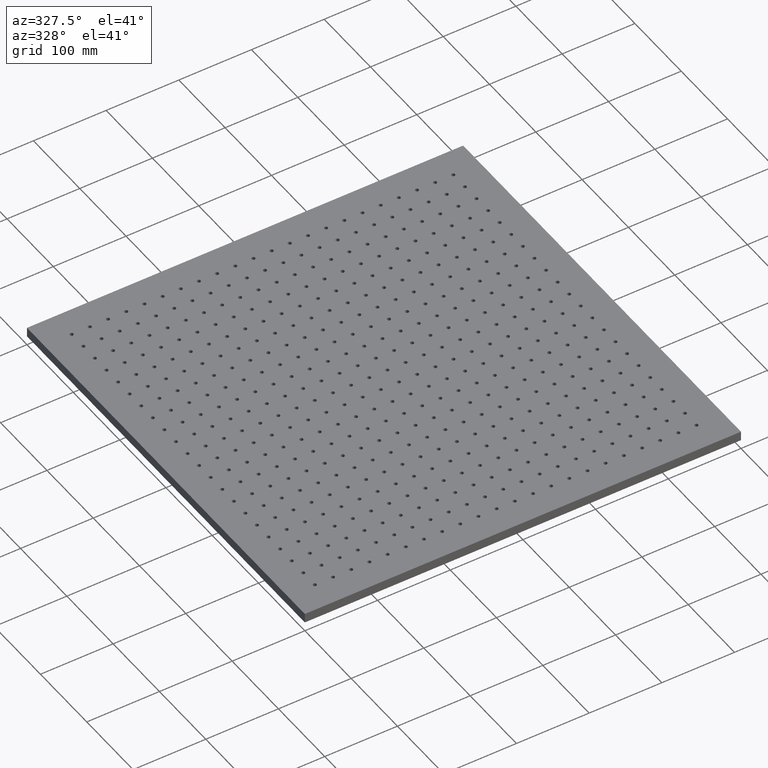
[diagram: clean part render]
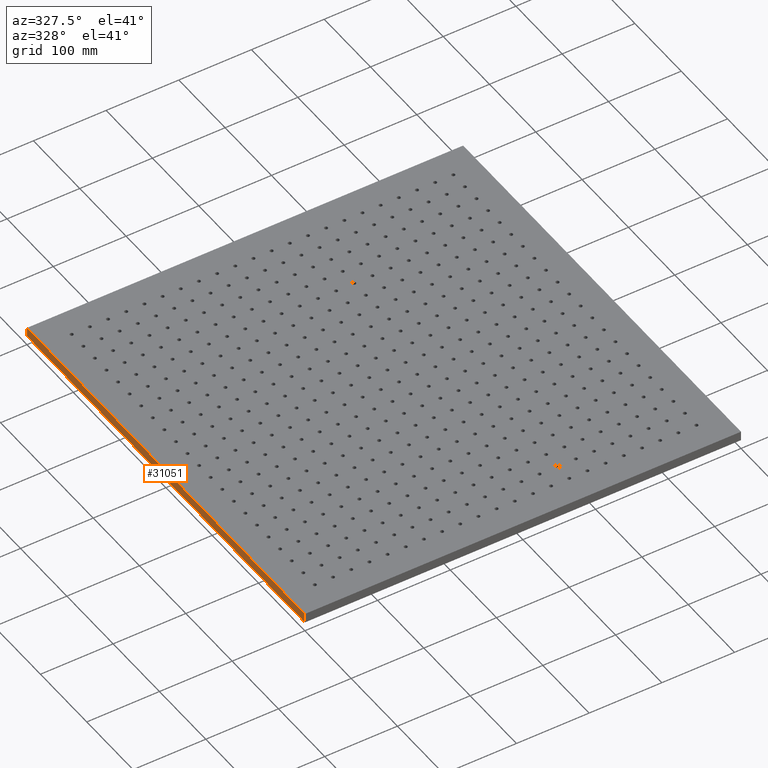
[diagram: same view with one face highlighted and labeled with its STEP entity id]
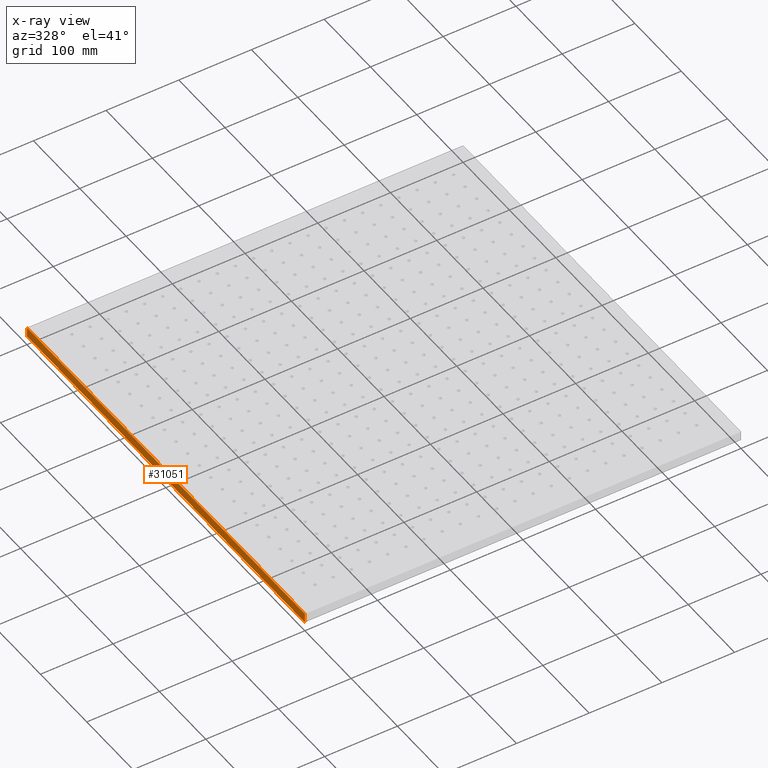
[diagram: x-ray of the same camera — body ghosted, the highlighted face saturated]
A machine part, auxiliary view. The second image highlights one B-rep face of the part: STEP entity #31051.
The next image is the same camera in x-ray: the body ghosted, the highlighted face saturated — about 0% of this face is hidden behind the body in this view.
In plain terms, the highlighted planar face has unit normal (1, 0, -0).
Its self-contained STEP definition (entity closure, byte-faithful):
#47 = CARTESIAN_POINT ( 'NONE',  ( -300.0000000000000600, -299.9999999999999400, 0.0000000000000000000 ) ) ;
#203 = VERTEX_POINT ( 'NONE', #47 ) ;
#243 = EDGE_CURVE ( 'NONE', #24601, #203, #950, .T. ) ;
#950 = LINE ( 'NONE', #16553, #22198 ) ;
#1377 = AXIS2_PLACEMENT_3D ( 'NONE', #28866, #26075, #34479 ) ;
#1963 = EDGE_CURVE ( 'NONE', #5846, #34470, #23400, .T. ) ;
#4556 = FACE_OUTER_BOUND ( 'NONE', #31992, .T. ) ;
#5846 = VERTEX_POINT ( 'NONE', #29410 ) ;
#6490 = ORIENTED_EDGE ( 'NONE', *, *, #1963, .F. ) ;
#9257 = ORIENTED_EDGE ( 'NONE', *, *, #13182, .T. ) ;
#9338 = EDGE_CURVE ( 'NONE', #34470, #203, #23067, .T. ) ;
#12493 = DIRECTION ( 'NONE',  ( -0.0000000000000000000, -0.0000000000000000000, -1.000000000000000000 ) ) ;
#12612 = ORIENTED_EDGE ( 'NONE', *, *, #243, .T. ) ;
#13182 = EDGE_CURVE ( 'NONE', #5846, #24601, #15536, .T. ) ;
#14846 = VECTOR ( 'NONE', #20201, 1000.000000000000000 ) ;
#14857 = DIRECTION ( 'NONE',  ( 0.0000000000000000000, -1.000000000000000000, 0.0000000000000000000 ) ) ;
#15102 = PLANE ( 'NONE',  #1377 ) ;
#15536 = LINE ( 'NONE', #34678, #29375 ) ;
#16052 = VECTOR ( 'NONE', #21412, 1000.000000000000000 ) ;
#16326 = CARTESIAN_POINT ( 'NONE',  ( -300.0000000000000600, -299.9999999999999400, 13.00000000000000000 ) ) ;
#16553 = CARTESIAN_POINT ( 'NONE',  ( -300.0000000000000600, 300.0000000000000600, 0.0000000000000000000 ) ) ;
#17429 = CARTESIAN_POINT ( 'NONE',  ( -300.0000000000000600, -299.9999999999999400, 13.00000000000000000 ) ) ;
#17659 = CARTESIAN_POINT ( 'NONE',  ( -300.0000000000000600, 300.0000000000000600, 0.0000000000000000000 ) ) ;
#20201 = DIRECTION ( 'NONE',  ( -0.0000000000000000000, -0.0000000000000000000, -1.000000000000000000 ) ) ;
#21412 = DIRECTION ( 'NONE',  ( 0.0000000000000000000, -1.000000000000000000, 0.0000000000000000000 ) ) ;
#22198 = VECTOR ( 'NONE', #14857, 1000.000000000000000 ) ;
#23067 = LINE ( 'NONE', #17429, #14846 ) ;
#23400 = LINE ( 'NONE', #32481, #16052 ) ;
#24601 = VERTEX_POINT ( 'NONE', #17659 ) ;
#26075 = DIRECTION ( 'NONE',  ( 1.000000000000000000, 0.0000000000000000000, -0.0000000000000000000 ) ) ;
#28866 = CARTESIAN_POINT ( 'NONE',  ( -300.0000000000000600, 300.0000000000000600, 13.00000000000000000 ) ) ;
#29375 = VECTOR ( 'NONE', #12493, 1000.000000000000000 ) ;
#29410 = CARTESIAN_POINT ( 'NONE',  ( -300.0000000000000600, 300.0000000000000600, 13.00000000000000000 ) ) ;
#30009 = ORIENTED_EDGE ( 'NONE', *, *, #9338, .F. ) ;
#31051 = ADVANCED_FACE ( 'NONE', ( #4556 ), #15102, .F. ) ;
#31992 = EDGE_LOOP ( 'NONE', ( #12612, #30009, #6490, #9257 ) ) ;
#32481 = CARTESIAN_POINT ( 'NONE',  ( -300.0000000000000600, 300.0000000000000600, 13.00000000000000000 ) ) ;
#34470 = VERTEX_POINT ( 'NONE', #16326 ) ;
#34479 = DIRECTION ( 'NONE',  ( -0.0000000000000000000, 0.0000000000000000000, -1.000000000000000000 ) ) ;
#34678 = CARTESIAN_POINT ( 'NONE',  ( -300.0000000000000600, 300.0000000000000600, 13.00000000000000000 ) ) ;